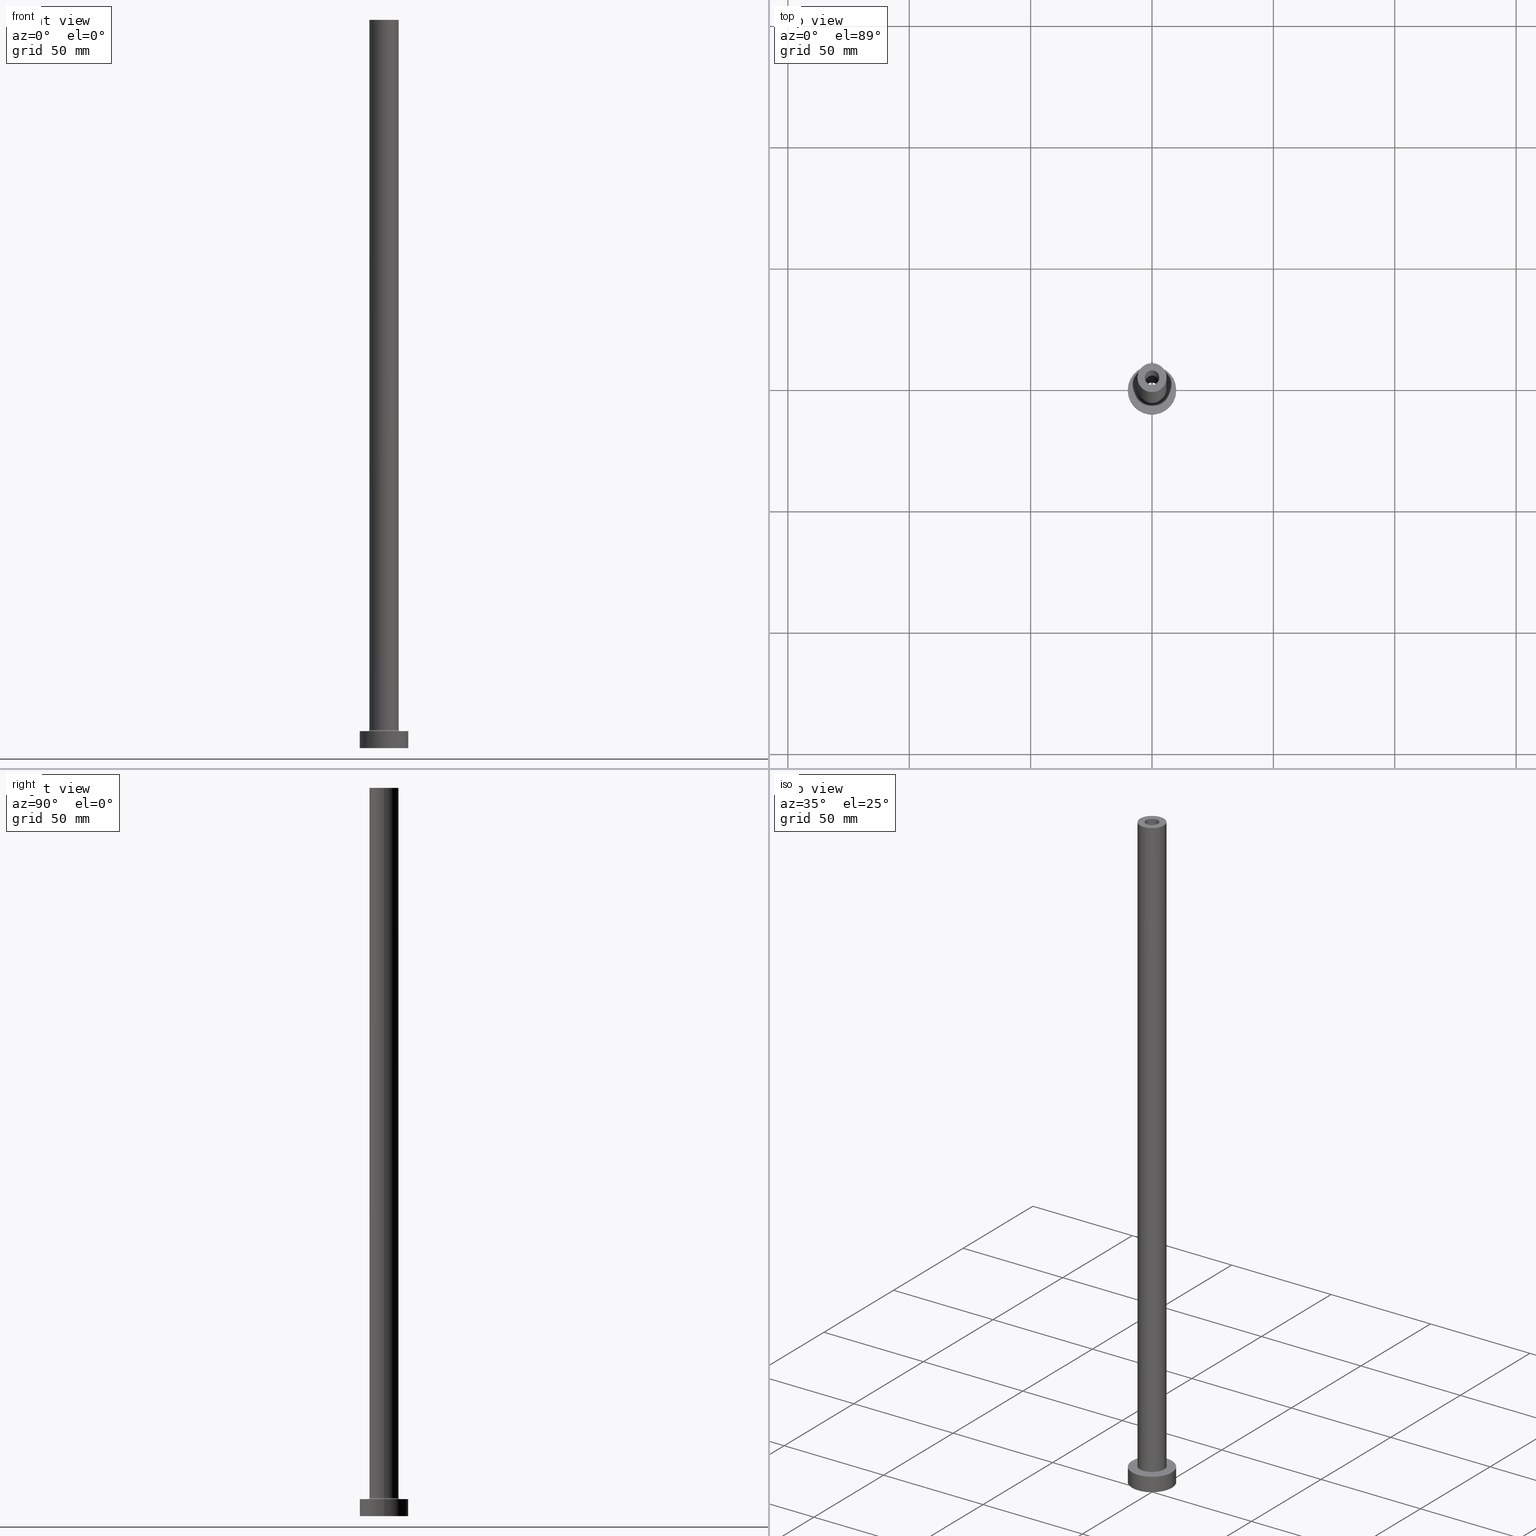
[diagram: canonical four-view strip — front | top / right | iso, engineering-drawing reading convention]
A machine part, canonical four-view strip (front | top / right | iso — engineering-drawing reading convention). The complete STEP part file that produces these views, byte-faithful:
ISO-10303-21;
HEADER;
FILE_DESCRIPTION (( 'STEP AP203' ),
    '1' );
FILE_NAME ('ec31.STEP',
    '2023-02-13T15:00:52',
    ( '' ),
    ( '' ),
    'SwSTEP 2.0',
    'SolidWorks 2019',
    '' );
FILE_SCHEMA (( 'CONFIG_CONTROL_DESIGN' ));
ENDSEC;

DATA;
#1 = DIRECTION ( 'NONE',  ( 0.000000000000000000, 0.000000000000000000, 1.000000000000000000 ) ) ;
#2 = DIRECTION ( 'NONE',  ( 0.000000000000000000, 0.000000000000000000, 1.000000000000000000 ) ) ;
#3 = APPLICATION_CONTEXT ( 'configuration controlled 3d designs of mechanical parts and assemblies' ) ;
#4 = DIRECTION ( 'NONE',  ( -1.000000000000000000, 0.000000000000000000, 0.000000000000000000 ) ) ;
#5 = ORIENTED_EDGE ( 'NONE', *, *, #112, .F. ) ;
#6 = CIRCLE ( 'NONE', #69, 3.000000000000000444 ) ;
#7 = EDGE_CURVE ( 'NONE', #16, #55, #129, .T. ) ;
#8 = CIRCLE ( 'NONE', #186, 6.500000000000000888 ) ;
#9 = LOCAL_TIME ( 16, 0, 52.00000000000000000, #297 ) ;
#10 = DIRECTION ( 'NONE',  ( -0.000000000000000000, -0.000000000000000000, -1.000000000000000000 ) ) ;
#11 = ORIENTED_EDGE ( 'NONE', *, *, #420, .F. ) ;
#12 = CALENDAR_DATE ( 2023, 13, 2 ) ;
#13 = ORIENTED_EDGE ( 'NONE', *, *, #420, .T. ) ;
#14 = ADVANCED_FACE ( 'NONE', ( #135 ), #17, .F. ) ;
#15 = APPROVAL_ROLE ( '' ) ;
#16 = VERTEX_POINT ( 'NONE', #162 ) ;
#17 = TOROIDAL_SURFACE ( 'NONE', #76, 6.500000000000000888, 0.5000000000000000000 ) ;
#18 = AXIS2_PLACEMENT_3D ( 'NONE', #414, #355, #109 ) ;
#19 = DATE_AND_TIME ( #12, #342 ) ;
#20 = ORIENTED_EDGE ( 'NONE', *, *, #401, .T. ) ;
#21 = APPROVAL_STATUS ( 'not_yet_approved' ) ;
#22 = ORIENTED_EDGE ( 'NONE', *, *, #412, .F. ) ;
#23 = APPROVAL_ROLE ( '' ) ;
#24 = DIRECTION ( 'NONE',  ( 0.000000000000000000, 0.000000000000000000, 1.000000000000000000 ) ) ;
#25 = FACE_BOUND ( 'NONE', #286, .T. ) ;
#26 = CC_DESIGN_APPROVAL ( #146, ( #214 ) ) ;
#27 = ORIENTED_EDGE ( 'NONE', *, *, #303, .T. ) ;
#28 = CC_DESIGN_PERSON_AND_ORGANIZATION_ASSIGNMENT ( #290, #332, ( #71 ) ) ;
#29 = ORIENTED_EDGE ( 'NONE', *, *, #283, .T. ) ;
#30 = CARTESIAN_POINT ( 'NONE',  ( 0.000000000000000000, 0.000000000000000000, 255.0000000000000000 ) ) ;
#31 = CARTESIAN_POINT ( 'NONE',  ( 0.000000000000000000, 0.000000000000000000, 300.0000000000000000 ) ) ;
#32 = TOROIDAL_SURFACE ( 'NONE', #408, 6.500000000000000888, 0.5000000000000000000 ) ;
#33 = APPROVAL_PERSON_ORGANIZATION ( #190, #146, #188 ) ;
#34 = DIRECTION ( 'NONE',  ( 0.000000000000000000, 0.000000000000000000, 1.000000000000000000 ) ) ;
#35 = LINE ( 'NONE', #219, #316 ) ;
#36 = DIRECTION ( 'NONE',  ( 1.000000000000000000, 0.000000000000000000, 0.000000000000000000 ) ) ;
#37 = DIRECTION ( 'NONE',  ( 1.000000000000000000, 0.000000000000000000, 0.000000000000000000 ) ) ;
#38 = EDGE_CURVE ( 'NONE', #124, #323, #57, .T. ) ;
#39 = DIRECTION ( 'NONE',  ( -0.000000000000000000, -0.000000000000000000, -1.000000000000000000 ) ) ;
#40 = CYLINDRICAL_SURFACE ( 'NONE', #99, 10.00000000000000000 ) ;
#41 = APPROVAL ( #327, 'NEUR�EN�' ) ;
#42 = CARTESIAN_POINT ( 'NONE',  ( 10.00000000000000000, 1.224646799147353256E-15, 0.000000000000000000 ) ) ;
#43 = CIRCLE ( 'NONE', #293, 6.000000000000000888 ) ;
#44 = CARTESIAN_POINT ( 'NONE',  ( -3.150000000000000355, 0.000000000000000000, 263.9095454429505594 ) ) ;
#45 = EDGE_CURVE ( 'NONE', #372, #333, #6, .T. ) ;
#46 = CC_DESIGN_PERSON_AND_ORGANIZATION_ASSIGNMENT ( #399, #437, ( #151 ) ) ;
#47 = LINE ( 'NONE', #275, #180 ) ;
#48 = DIRECTION ( 'NONE',  ( 1.000000000000000000, 0.000000000000000000, 0.000000000000000000 ) ) ;
#49 = DIRECTION ( 'NONE',  ( 0.000000000000000000, 0.000000000000000000, 1.000000000000000000 ) ) ;
#50 = VERTEX_POINT ( 'NONE', #300 ) ;
#51 = AXIS2_PLACEMENT_3D ( 'NONE', #115, #49, #415 ) ;
#52 = PERSON_AND_ORGANIZATION ( #447, #158 ) ;
#53 = VERTEX_POINT ( 'NONE', #128 ) ;
#54 = ADVANCED_FACE ( 'NONE', ( #377 ), #66, .F. ) ;
#55 = VERTEX_POINT ( 'NONE', #60 ) ;
#56 = EDGE_LOOP ( 'NONE', ( #13, #367 ) ) ;
#57 = CIRCLE ( 'NONE', #306, 3.000000000000000444 ) ;
#58 = AXIS2_PLACEMENT_3D ( 'NONE', #213, #252, #170 ) ;
#59 = CARTESIAN_POINT ( 'NONE',  ( 0.000000000000000000, 0.000000000000000000, 255.0000000000000000 ) ) ;
#60 = CARTESIAN_POINT ( 'NONE',  ( 3.150000000000000355, 3.857637417314163182E-16, 255.0000000000000000 ) ) ;
#61 = PRODUCT_RELATED_PRODUCT_CATEGORY ( 'detail', '', ( #199 ) ) ;
#62 = DIRECTION ( 'NONE',  ( -1.000000000000000000, 0.000000000000000000, 0.000000000000000000 ) ) ;
#63 = CIRCLE ( 'NONE', #217, 3.150000000000000355 ) ;
#64 = ORIENTED_EDGE ( 'NONE', *, *, #374, .F. ) ;
#65 = ADVANCED_FACE ( 'NONE', ( #25, #266 ), #198, .T. ) ;
#66 = CYLINDRICAL_SURFACE ( 'NONE', #157, 3.000000000000000444 ) ;
#67 = FACE_OUTER_BOUND ( 'NONE', #224, .T. ) ;
#68 = APPLICATION_PROTOCOL_DEFINITION ( 'international standard', 'config_control_design', 1994, #3 ) ;
#69 = AXIS2_PLACEMENT_3D ( 'NONE', #298, #231, #407 ) ;
#70 = DIRECTION ( 'NONE',  ( -0.000000000000000000, -0.000000000000000000, -1.000000000000000000 ) ) ;
#71 = PRODUCT_DEFINITION_FORMATION_WITH_SPECIFIED_SOURCE ( 'LIBOVOLN�', '', #199, .NOT_KNOWN. ) ;
#72 = DIRECTION ( 'NONE',  ( 0.000000000000000000, 0.000000000000000000, -1.000000000000000000 ) ) ;
#73 = FACE_BOUND ( 'NONE', #101, .T. ) ;
#74 = LINE ( 'NONE', #44, #356 ) ;
#75 = CARTESIAN_POINT ( 'NONE',  ( 0.000000000000000000, 0.000000000000000000, 300.0000000000000000 ) ) ;
#76 = AXIS2_PLACEMENT_3D ( 'NONE', #234, #96, #448 ) ;
#77 = DIRECTION ( 'NONE',  ( -1.000000000000000000, 0.000000000000000000, 0.000000000000000000 ) ) ;
#78 = AXIS2_PLACEMENT_3D ( 'NONE', #351, #421, #182 ) ;
#79 = ADVANCED_FACE ( 'NONE', ( #132 ), #265, .F. ) ;
#80 = DIRECTION ( 'NONE',  ( 0.000000000000000000, 0.000000000000000000, 1.000000000000000000 ) ) ;
#81 = FACE_BOUND ( 'NONE', #134, .T. ) ;
#82 = ORIENTED_EDGE ( 'NONE', *, *, #92, .F. ) ;
#83 = DATE_TIME_ROLE ( 'classification_date' ) ;
#84 = EDGE_LOOP ( 'NONE', ( #221, #253 ) ) ;
#85 = EDGE_CURVE ( 'NONE', #304, #261, #433, .T. ) ;
#86 = CIRCLE ( 'NONE', #18, 3.150000000000000355 ) ;
#87 = APPROVAL_PERSON_ORGANIZATION ( #434, #436, #23 ) ;
#88 = VERTEX_POINT ( 'NONE', #238 ) ;
#89 = ORIENTED_EDGE ( 'NONE', *, *, #411, .T. ) ;
#90 = ORIENTED_EDGE ( 'NONE', *, *, #334, .T. ) ;
#91 = CIRCLE ( 'NONE', #357, 10.00000000000000000 ) ;
#92 = EDGE_CURVE ( 'NONE', #55, #230, #273, .T. ) ;
#93 = PERSON_AND_ORGANIZATION ( #447, #158 ) ;
#94 = DIRECTION ( 'NONE',  ( 0.000000000000000000, 0.000000000000000000, -1.000000000000000000 ) ) ;
#95 = ORIENTED_EDGE ( 'NONE', *, *, #173, .F. ) ;
#96 = DIRECTION ( 'NONE',  ( 0.000000000000000000, 0.000000000000000000, 1.000000000000000000 ) ) ;
#97 = EDGE_CURVE ( 'NONE', #194, #88, #8, .T. ) ;
#98 = AXIS2_PLACEMENT_3D ( 'NONE', #172, #208, #350 ) ;
#99 = AXIS2_PLACEMENT_3D ( 'NONE', #417, #107, #243 ) ;
#100 = EDGE_LOOP ( 'NONE', ( #257, #89, #429, #202 ) ) ;
#101 = EDGE_LOOP ( 'NONE', ( #201, #328 ) ) ;
#102 = CARTESIAN_POINT ( 'NONE',  ( -10.00000000000000000, 0.000000000000000000, 0.000000000000000000 ) ) ;
#103 = CYLINDRICAL_SURFACE ( 'NONE', #270, 3.000000000000000444 ) ;
#104 = MECHANICAL_CONTEXT ( 'NONE', #3, 'mechanical' ) ;
#105 = DIRECTION ( 'NONE',  ( 1.000000000000000000, 0.000000000000000000, 0.000000000000000000 ) ) ;
#106 = CIRCLE ( 'NONE', #78, 6.500000000000000888 ) ;
#107 = DIRECTION ( 'NONE',  ( -0.000000000000000000, -0.000000000000000000, -1.000000000000000000 ) ) ;
#108 = CARTESIAN_POINT ( 'NONE',  ( 0.000000000000000000, 0.000000000000000000, 7.500000000000007105 ) ) ;
#109 = DIRECTION ( 'NONE',  ( 1.000000000000000000, 0.000000000000000000, 0.000000000000000000 ) ) ;
#110 = CARTESIAN_POINT ( 'NONE',  ( 6.500000000000000888, 0.000000000000000000, 7.500000000000007105 ) ) ;
#111 = ADVANCED_FACE ( 'NONE', ( #383 ), #32, .F. ) ;
#112 = EDGE_CURVE ( 'NONE', #121, #291, #205, .T. ) ;
#113 = DIRECTION ( 'NONE',  ( 0.000000000000000000, 0.000000000000000000, -1.000000000000000000 ) ) ;
#114 = CIRCLE ( 'NONE', #130, 6.000000000000000888 ) ;
#115 = CARTESIAN_POINT ( 'NONE',  ( 0.000000000000000000, 0.000000000000000000, 255.0000000000000000 ) ) ;
#116 = MANIFOLD_SOLID_BREP ( 'Odebrat vysunut�m4', #340 ) ;
#117 = ORIENTED_EDGE ( 'NONE', *, *, #92, .T. ) ;
#118 = DIRECTION ( 'NONE',  ( 0.000000000000000000, 0.000000000000000000, 1.000000000000000000 ) ) ;
#119 = ORIENTED_EDGE ( 'NONE', *, *, #268, .F. ) ;
#120 = DATE_AND_TIME ( #430, #248 ) ;
#121 = VERTEX_POINT ( 'NONE', #241 ) ;
#122 = ADVANCED_BREP_SHAPE_REPRESENTATION ( 'ec31', ( #116, #425 ), #294 ) ;
#123 = AXIS2_PLACEMENT_3D ( 'NONE', #317, #1, #453 ) ;
#124 = VERTEX_POINT ( 'NONE', #455 ) ;
#125 = COORDINATED_UNIVERSAL_TIME_OFFSET ( 1, 0, .AHEAD. ) ;
#126 = ORIENTED_EDGE ( 'NONE', *, *, #127, .T. ) ;
#127 = EDGE_CURVE ( 'NONE', #230, #50, #63, .T. ) ;
#128 = CARTESIAN_POINT ( 'NONE',  ( -10.00000000000000000, 0.000000000000000000, 7.000000000000000000 ) ) ;
#129 = CIRCLE ( 'NONE', #432, 3.150000000000000355 ) ;
#130 = AXIS2_PLACEMENT_3D ( 'NONE', #75, #215, #36 ) ;
#131 = COORDINATED_UNIVERSAL_TIME_OFFSET ( 1, 0, .AHEAD. ) ;
#132 = FACE_OUTER_BOUND ( 'NONE', #260, .T. ) ;
#133 = CC_DESIGN_PERSON_AND_ORGANIZATION_ASSIGNMENT ( #295, #397, ( #214 ) ) ;
#134 = EDGE_LOOP ( 'NONE', ( #164, #159 ) ) ;
#135 = FACE_OUTER_BOUND ( 'NONE', #222, .T. ) ;
#136 = CIRCLE ( 'NONE', #144, 0.5000000000000004441 ) ;
#137 = DIRECTION ( 'NONE',  ( 1.000000000000000000, 0.000000000000000000, 0.000000000000000000 ) ) ;
#138 = DIRECTION ( 'NONE',  ( 0.000000000000000000, 0.000000000000000000, 1.000000000000000000 ) ) ;
#139 = CARTESIAN_POINT ( 'NONE',  ( 0.000000000000000000, 0.000000000000000000, 0.000000000000000000 ) ) ;
#140 = CYLINDRICAL_SURFACE ( 'NONE', #461, 10.00000000000000000 ) ;
#141 = CARTESIAN_POINT ( 'NONE',  ( -6.000000000000000888, 0.000000000000000000, 7.500000000000007105 ) ) ;
#142 = DIRECTION ( 'NONE',  ( 0.000000000000000000, 0.000000000000000000, -1.000000000000000000 ) ) ;
#143 = FACE_OUTER_BOUND ( 'NONE', #305, .T. ) ;
#144 = AXIS2_PLACEMENT_3D ( 'NONE', #110, #181, #142 ) ;
#145 = DIRECTION ( 'NONE',  ( -0.000000000000000000, -0.000000000000000000, -1.000000000000000000 ) ) ;
#146 = APPROVAL ( #21, 'NEUR�EN�' ) ;
#147 = FACE_OUTER_BOUND ( 'NONE', #100, .T. ) ;
#148 = DIRECTION ( 'NONE',  ( 0.000000000000000000, 0.000000000000000000, -1.000000000000000000 ) ) ;
#149 = VERTEX_POINT ( 'NONE', #141 ) ;
#150 = AXIS2_PLACEMENT_3D ( 'NONE', #30, #322, #311 ) ;
#151 = SECURITY_CLASSIFICATION ( '', '', #264 ) ;
#152 = ORIENTED_EDGE ( 'NONE', *, *, #235, .T. ) ;
#153 = PERSON_AND_ORGANIZATION_ROLE ( 'creator' ) ;
#154 = VERTEX_POINT ( 'NONE', #102 ) ;
#155 = COORDINATED_UNIVERSAL_TIME_OFFSET ( 1, 0, .AHEAD. ) ;
#156 = EDGE_LOOP ( 'NONE', ( #64, #226 ) ) ;
#157 = AXIS2_PLACEMENT_3D ( 'NONE', #440, #94, #302 ) ;
#158 = ORGANIZATION ( 'NEUR�EN�', 'NEUR�EN�', '' ) ;
#159 = ORIENTED_EDGE ( 'NONE', *, *, #127, .F. ) ;
#160 = ADVANCED_FACE ( 'NONE', ( #73, #379 ), #452, .T. ) ;
#161 = APPROVAL_DATE_TIME ( #403, #146 ) ;
#162 = CARTESIAN_POINT ( 'NONE',  ( -3.150000000000000355, 0.000000000000000000, 255.0000000000000000 ) ) ;
#163 = DATE_AND_TIME ( #299, #9 ) ;
#164 = ORIENTED_EDGE ( 'NONE', *, *, #242, .F. ) ;
#165 = DESIGN_CONTEXT ( 'detailed design', #271, 'design' ) ;
#166 = ADVANCED_FACE ( 'NONE', ( #67 ), #347, .T. ) ;
#167 = ORIENTED_EDGE ( 'NONE', *, *, #173, .T. ) ;
#168 = ORIENTED_EDGE ( 'NONE', *, *, #411, .F. ) ;
#169 = ORIENTED_EDGE ( 'NONE', *, *, #387, .T. ) ;
#170 = DIRECTION ( 'NONE',  ( 1.000000000000000000, 0.000000000000000000, 0.000000000000000000 ) ) ;
#171 = CIRCLE ( 'NONE', #247, 10.00000000000000000 ) ;
#172 = CARTESIAN_POINT ( 'NONE',  ( 0.000000000000000000, 0.000000000000000000, 300.0000000000000000 ) ) ;
#173 = EDGE_CURVE ( 'NONE', #333, #323, #35, .T. ) ;
#174 = DIRECTION ( 'NONE',  ( -0.000000000000000000, -0.000000000000000000, -1.000000000000000000 ) ) ;
#175 = DIRECTION ( 'NONE',  ( 1.000000000000000000, 0.000000000000000000, 0.000000000000000000 ) ) ;
#176 = CYLINDRICAL_SURFACE ( 'NONE', #381, 6.000000000000000888 ) ;
#177 = CARTESIAN_POINT ( 'NONE',  ( 0.000000000000000000, 0.000000000000000000, 0.000000000000000000 ) ) ;
#178 = FACE_OUTER_BOUND ( 'NONE', #236, .T. ) ;
#179 = EDGE_CURVE ( 'NONE', #291, #154, #363, .T. ) ;
#180 = VECTOR ( 'NONE', #10, 1000.000000000000000 ) ;
#181 = DIRECTION ( 'NONE',  ( 0.000000000000000000, -1.000000000000000000, 0.000000000000000000 ) ) ;
#182 = DIRECTION ( 'NONE',  ( 1.000000000000000000, 0.000000000000000000, 0.000000000000000000 ) ) ;
#183 = ORIENTED_EDGE ( 'NONE', *, *, #458, .T. ) ;
#184 = CARTESIAN_POINT ( 'NONE',  ( 0.000000000000000000, 0.000000000000000000, 7.000000000000000000 ) ) ;
#185 = ORIENTED_EDGE ( 'NONE', *, *, #283, .F. ) ;
#186 = AXIS2_PLACEMENT_3D ( 'NONE', #309, #70, #175 ) ;
#187 = LOCAL_TIME ( 16, 0, 52.00000000000000000, #131 ) ;
#188 = APPROVAL_ROLE ( '' ) ;
#189 = ORIENTED_EDGE ( 'NONE', *, *, #85, .T. ) ;
#190 = PERSON_AND_ORGANIZATION ( #447, #158 ) ;
#191 = ORIENTED_EDGE ( 'NONE', *, *, #242, .T. ) ;
#192 = CC_DESIGN_PERSON_AND_ORGANIZATION_ASSIGNMENT ( #52, #153, ( #71 ) ) ;
#193 = PERSON_AND_ORGANIZATION_ROLE ( 'design_owner' ) ;
#194 = VERTEX_POINT ( 'NONE', #282 ) ;
#195 = AXIS2_PLACEMENT_3D ( 'NONE', #31, #211, #459 ) ;
#196 = SHAPE_DEFINITION_REPRESENTATION ( #338, #122 ) ;
#197 = ORIENTED_EDGE ( 'NONE', *, *, #179, .T. ) ;
#198 = PLANE ( 'NONE',  #228 ) ;
#199 = PRODUCT ( 'ec31', 'ec31', '', ( #104 ) ) ;
#200 = CARTESIAN_POINT ( 'NONE',  ( 0.000000000000000000, 0.000000000000000000, 300.0000000000000000 ) ) ;
#201 = ORIENTED_EDGE ( 'NONE', *, *, #45, .F. ) ;
#202 = ORIENTED_EDGE ( 'NONE', *, *, #401, .F. ) ;
#203 = CARTESIAN_POINT ( 'NONE',  ( -6.000000000000000888, 0.000000000000000000, 300.0000000000000000 ) ) ;
#204 = ADVANCED_FACE ( 'NONE', ( #147 ), #176, .T. ) ;
#205 = LINE ( 'NONE', #378, #329 ) ;
#206 = PLANE ( 'NONE',  #307 ) ;
#207 = CIRCLE ( 'NONE', #123, 10.00000000000000000 ) ;
#208 = DIRECTION ( 'NONE',  ( -0.000000000000000000, -0.000000000000000000, -1.000000000000000000 ) ) ;
#209 = DIRECTION ( 'NONE',  ( 1.224646799147353207E-16, 1.000000000000000000, -0.000000000000000000 ) ) ;
#210 = DIRECTION ( 'NONE',  ( -1.000000000000000000, 0.000000000000000000, 0.000000000000000000 ) ) ;
#211 = DIRECTION ( 'NONE',  ( 0.000000000000000000, 0.000000000000000000, 1.000000000000000000 ) ) ;
#212 = CARTESIAN_POINT ( 'NONE',  ( 3.000000000000000444, 3.673940397442059868E-16, 255.0000000000000000 ) ) ;
#213 = CARTESIAN_POINT ( 'NONE',  ( 0.000000000000000000, 0.000000000000000000, 255.0000000000000000 ) ) ;
#214 = PRODUCT_DEFINITION ( 'NEZN�M�', '', #71, #165 ) ;
#215 = DIRECTION ( 'NONE',  ( 0.000000000000000000, 0.000000000000000000, 1.000000000000000000 ) ) ;
#216 = CC_DESIGN_DATE_AND_TIME_ASSIGNMENT ( #120, #83, ( #151 ) ) ;
#217 = AXIS2_PLACEMENT_3D ( 'NONE', #177, #314, #353 ) ;
#218 = CC_DESIGN_SECURITY_CLASSIFICATION ( #151, ( #71 ) ) ;
#219 = CARTESIAN_POINT ( 'NONE',  ( 3.000000000000000444, 3.673940397442059868E-16, 300.0000000000000000 ) ) ;
#220 = DIRECTION ( 'NONE',  ( -1.000000000000000000, 1.224646799147351482E-16, 0.000000000000000000 ) ) ;
#221 = ORIENTED_EDGE ( 'NONE', *, *, #7, .F. ) ;
#222 = EDGE_LOOP ( 'NONE', ( #344, #227, #395, #393 ) ) ;
#223 = AXIS2_PLACEMENT_3D ( 'NONE', #405, #373, #62 ) ;
#224 = EDGE_LOOP ( 'NONE', ( #168, #185, #20, #90 ) ) ;
#225 = EDGE_CURVE ( 'NONE', #372, #124, #423, .T. ) ;
#226 = ORIENTED_EDGE ( 'NONE', *, *, #179, .F. ) ;
#227 = ORIENTED_EDGE ( 'NONE', *, *, #268, .T. ) ;
#228 = AXIS2_PLACEMENT_3D ( 'NONE', #337, #24, #443 ) ;
#229 = APPROVAL_DATE_TIME ( #19, #41 ) ;
#230 = VERTEX_POINT ( 'NONE', #274 ) ;
#231 = DIRECTION ( 'NONE',  ( 0.000000000000000000, 0.000000000000000000, 1.000000000000000000 ) ) ;
#232 = ORIENTED_EDGE ( 'NONE', *, *, #374, .T. ) ;
#233 = CC_DESIGN_APPROVAL ( #436, ( #71 ) ) ;
#234 = CARTESIAN_POINT ( 'NONE',  ( 0.000000000000000000, 0.000000000000000000, 7.500000000000007105 ) ) ;
#235 = EDGE_CURVE ( 'NONE', #53, #154, #354, .T. ) ;
#236 = EDGE_LOOP ( 'NONE', ( #431, #117, #126, #345 ) ) ;
#237 = DIRECTION ( 'NONE',  ( 0.000000000000000000, 0.000000000000000000, 1.000000000000000000 ) ) ;
#238 = CARTESIAN_POINT ( 'NONE',  ( 6.500000000000000888, 0.000000000000000000, 7.000000000000002665 ) ) ;
#239 = CARTESIAN_POINT ( 'NONE',  ( -6.500000000000000888, 7.960204194457796463E-16, 7.500000000000007105 ) ) ;
#240 = CIRCLE ( 'NONE', #341, 0.5000000000000004441 ) ;
#241 = CARTESIAN_POINT ( 'NONE',  ( 10.00000000000000000, 1.224646799147353256E-15, 7.000000000000000000 ) ) ;
#242 = EDGE_CURVE ( 'NONE', #50, #230, #86, .T. ) ;
#243 = DIRECTION ( 'NONE',  ( -1.000000000000000000, 0.000000000000000000, 0.000000000000000000 ) ) ;
#244 = CARTESIAN_POINT ( 'NONE',  ( 0.000000000000000000, 0.000000000000000000, 0.000000000000000000 ) ) ;
#245 = CARTESIAN_POINT ( 'NONE',  ( -3.000000000000000444, 0.000000000000000000, 300.0000000000000000 ) ) ;
#246 = CARTESIAN_POINT ( 'NONE',  ( 3.000000000000000444, 3.673940397442059868E-16, 300.0000000000000000 ) ) ;
#247 = AXIS2_PLACEMENT_3D ( 'NONE', #244, #118, #308 ) ;
#248 = LOCAL_TIME ( 16, 0, 52.00000000000000000, #256 ) ;
#249 = CARTESIAN_POINT ( 'NONE',  ( 0.000000000000000000, 0.000000000000000000, 300.0000000000000000 ) ) ;
#250 = ORIENTED_EDGE ( 'NONE', *, *, #38, .F. ) ;
#251 = EDGE_CURVE ( 'NONE', #16, #50, #74, .T. ) ;
#252 = DIRECTION ( 'NONE',  ( 0.000000000000000000, 0.000000000000000000, 1.000000000000000000 ) ) ;
#253 = ORIENTED_EDGE ( 'NONE', *, *, #458, .F. ) ;
#254 = PLANE ( 'NONE',  #51 ) ;
#255 = ORIENTED_EDGE ( 'NONE', *, *, #225, .F. ) ;
#256 = COORDINATED_UNIVERSAL_TIME_OFFSET ( 1, 0, .AHEAD. ) ;
#257 = ORIENTED_EDGE ( 'NONE', *, *, #85, .F. ) ;
#258 = CIRCLE ( 'NONE', #58, 3.000000000000000444 ) ;
#259 = ADVANCED_FACE ( 'NONE', ( #359 ), #103, .F. ) ;
#260 = EDGE_LOOP ( 'NONE', ( #82, #183, #368, #191 ) ) ;
#261 = VERTEX_POINT ( 'NONE', #312 ) ;
#262 = VERTEX_POINT ( 'NONE', #386 ) ;
#263 = AXIS2_PLACEMENT_3D ( 'NONE', #200, #339, #445 ) ;
#264 = SECURITY_CLASSIFICATION_LEVEL ( 'unclassified' ) ;
#265 = CYLINDRICAL_SURFACE ( 'NONE', #223, 3.150000000000000355 ) ;
#266 = FACE_OUTER_BOUND ( 'NONE', #56, .T. ) ;
#267 = CARTESIAN_POINT ( 'NONE',  ( 0.000000000000000000, 0.000000000000000000, 255.0000000000000000 ) ) ;
#268 = EDGE_CURVE ( 'NONE', #149, #194, #240, .T. ) ;
#269 = EDGE_CURVE ( 'NONE', #88, #194, #106, .T. ) ;
#270 = AXIS2_PLACEMENT_3D ( 'NONE', #249, #391, #384 ) ;
#271 = APPLICATION_CONTEXT ( 'configuration controlled 3d designs of mechanical parts and assemblies' ) ;
#272 = DIRECTION ( 'NONE',  ( 0.000000000000000000, 0.000000000000000000, 1.000000000000000000 ) ) ;
#273 = LINE ( 'NONE', #413, #424 ) ;
#274 = CARTESIAN_POINT ( 'NONE',  ( 3.150000000000000355, 3.857637417314163182E-16, 0.000000000000000000 ) ) ;
#275 = CARTESIAN_POINT ( 'NONE',  ( 6.000000000000000888, 7.347880794884120722E-16, 300.0000000000000000 ) ) ;
#276 = CARTESIAN_POINT ( 'NONE',  ( 0.000000000000000000, 0.000000000000000000, 7.500000000000007105 ) ) ;
#277 = FACE_OUTER_BOUND ( 'NONE', #427, .T. ) ;
#278 = CARTESIAN_POINT ( 'NONE',  ( -3.000000000000000444, 0.000000000000000000, 300.0000000000000000 ) ) ;
#279 = CC_DESIGN_APPROVAL ( #41, ( #151 ) ) ;
#280 = CARTESIAN_POINT ( 'NONE',  ( 0.000000000000000000, 0.000000000000000000, 300.0000000000000000 ) ) ;
#281 = CARTESIAN_POINT ( 'NONE',  ( -10.00000000000000000, 0.000000000000000000, 7.000000000000000000 ) ) ;
#282 = CARTESIAN_POINT ( 'NONE',  ( -6.500000000000000888, 7.960204194457796463E-16, 7.000000000000002665 ) ) ;
#283 = EDGE_CURVE ( 'NONE', #261, #304, #114, .T. ) ;
#284 = AXIS2_PLACEMENT_3D ( 'NONE', #460, #287, #210 ) ;
#285 = CARTESIAN_POINT ( 'NONE',  ( 0.000000000000000000, 0.000000000000000000, 0.000000000000000000 ) ) ;
#286 = EDGE_LOOP ( 'NONE', ( #438, #292 ) ) ;
#287 = DIRECTION ( 'NONE',  ( 0.000000000000000000, 0.000000000000000000, -1.000000000000000000 ) ) ;
#288 = EDGE_LOOP ( 'NONE', ( #119, #22, #296, #365 ) ) ;
#289 = CC_DESIGN_PERSON_AND_ORGANIZATION_ASSIGNMENT ( #442, #193, ( #199 ) ) ;
#290 = PERSON_AND_ORGANIZATION ( #447, #158 ) ;
#291 = VERTEX_POINT ( 'NONE', #42 ) ;
#292 = ORIENTED_EDGE ( 'NONE', *, *, #97, .T. ) ;
#293 = AXIS2_PLACEMENT_3D ( 'NONE', #108, #361, #392 ) ;
#294 =( GEOMETRIC_REPRESENTATION_CONTEXT ( 3 ) GLOBAL_UNCERTAINTY_ASSIGNED_CONTEXT ( ( #444 ) ) GLOBAL_UNIT_ASSIGNED_CONTEXT ( ( #451, #457, #349 ) ) REPRESENTATION_CONTEXT ( 'NONE', 'WORKASPACE' ) );
#295 = PERSON_AND_ORGANIZATION ( #447, #158 ) ;
#296 = ORIENTED_EDGE ( 'NONE', *, *, #318, .T. ) ;
#297 = COORDINATED_UNIVERSAL_TIME_OFFSET ( 1, 0, .AHEAD. ) ;
#298 = CARTESIAN_POINT ( 'NONE',  ( 0.000000000000000000, 0.000000000000000000, 300.0000000000000000 ) ) ;
#299 = CALENDAR_DATE ( 2023, 13, 2 ) ;
#300 = CARTESIAN_POINT ( 'NONE',  ( -3.150000000000000355, 0.000000000000000000, 0.000000000000000000 ) ) ;
#301 = CIRCLE ( 'NONE', #418, 3.000000000000000444 ) ;
#302 = DIRECTION ( 'NONE',  ( -1.000000000000000000, 0.000000000000000000, 0.000000000000000000 ) ) ;
#303 = EDGE_CURVE ( 'NONE', #333, #372, #301, .T. ) ;
#304 = VERTEX_POINT ( 'NONE', #360 ) ;
#305 = EDGE_LOOP ( 'NONE', ( #5, #11, #152, #232 ) ) ;
#306 = AXIS2_PLACEMENT_3D ( 'NONE', #267, #272, #410 ) ;
#307 = AXIS2_PLACEMENT_3D ( 'NONE', #346, #237, #385 ) ;
#308 = DIRECTION ( 'NONE',  ( 1.000000000000000000, 0.000000000000000000, 0.000000000000000000 ) ) ;
#309 = CARTESIAN_POINT ( 'NONE',  ( 0.000000000000000000, 0.000000000000000000, 7.000000000000000000 ) ) ;
#310 = DIRECTION ( 'NONE',  ( 1.000000000000000000, 0.000000000000000000, 0.000000000000000000 ) ) ;
#311 = DIRECTION ( 'NONE',  ( 1.000000000000000000, 0.000000000000000000, 0.000000000000000000 ) ) ;
#312 = CARTESIAN_POINT ( 'NONE',  ( -6.000000000000000888, 0.000000000000000000, 300.0000000000000000 ) ) ;
#313 = LINE ( 'NONE', #203, #376 ) ;
#314 = DIRECTION ( 'NONE',  ( -0.000000000000000000, -0.000000000000000000, -1.000000000000000000 ) ) ;
#315 = CYLINDRICAL_SURFACE ( 'NONE', #284, 3.150000000000000355 ) ;
#316 = VECTOR ( 'NONE', #113, 1000.000000000000000 ) ;
#317 = CARTESIAN_POINT ( 'NONE',  ( 0.000000000000000000, 0.000000000000000000, 7.000000000000000000 ) ) ;
#318 = EDGE_CURVE ( 'NONE', #262, #88, #136, .T. ) ;
#319 = CARTESIAN_POINT ( 'NONE',  ( 0.000000000000000000, 0.000000000000000000, 7.500000000000007105 ) ) ;
#320 = EDGE_LOOP ( 'NONE', ( #370, #169 ) ) ;
#321 = AXIS2_PLACEMENT_3D ( 'NONE', #139, #80, #388 ) ;
#322 = DIRECTION ( 'NONE',  ( 0.000000000000000000, 0.000000000000000000, 1.000000000000000000 ) ) ;
#323 = VERTEX_POINT ( 'NONE', #212 ) ;
#324 = EDGE_CURVE ( 'NONE', #121, #53, #207, .T. ) ;
#325 = APPLICATION_PROTOCOL_DEFINITION ( 'international standard', 'config_control_design', 1994, #271 ) ;
#326 = ORIENTED_EDGE ( 'NONE', *, *, #387, .F. ) ;
#327 = APPROVAL_STATUS ( 'not_yet_approved' ) ;
#328 = ORIENTED_EDGE ( 'NONE', *, *, #303, .F. ) ;
#329 = VECTOR ( 'NONE', #39, 1000.000000000000000 ) ;
#330 = CALENDAR_DATE ( 2023, 13, 2 ) ;
#331 = ORIENTED_EDGE ( 'NONE', *, *, #235, .F. ) ;
#332 = PERSON_AND_ORGANIZATION_ROLE ( 'design_supplier' ) ;
#333 = VERTEX_POINT ( 'NONE', #246 ) ;
#334 = EDGE_CURVE ( 'NONE', #149, #262, #389, .T. ) ;
#335 = ADVANCED_FACE ( 'NONE', ( #277 ), #40, .T. ) ;
#336 = DATE_AND_TIME ( #439, #187 ) ;
#337 = CARTESIAN_POINT ( 'NONE',  ( 0.000000000000000000, 0.000000000000000000, 7.000000000000000000 ) ) ;
#338 = PRODUCT_DEFINITION_SHAPE ( 'NONE', 'NONE',  #214 ) ;
#339 = DIRECTION ( 'NONE',  ( 0.000000000000000000, 0.000000000000000000, 1.000000000000000000 ) ) ;
#340 = CLOSED_SHELL ( 'NONE', ( #259, #343, #14, #204, #335, #358, #65, #450, #166, #160, #111, #79, #404, #54 ) ) ;
#341 = AXIS2_PLACEMENT_3D ( 'NONE', #239, #209, #220 ) ;
#342 = LOCAL_TIME ( 16, 0, 52.00000000000000000, #155 ) ;
#343 = ADVANCED_FACE ( 'NONE', ( #178 ), #315, .F. ) ;
#344 = ORIENTED_EDGE ( 'NONE', *, *, #334, .F. ) ;
#345 = ORIENTED_EDGE ( 'NONE', *, *, #251, .F. ) ;
#346 = CARTESIAN_POINT ( 'NONE',  ( 0.000000000000000000, 0.000000000000000000, 0.000000000000000000 ) ) ;
#347 = CYLINDRICAL_SURFACE ( 'NONE', #98, 6.000000000000000888 ) ;
#348 = CIRCLE ( 'NONE', #150, 3.150000000000000355 ) ;
#349 =( NAMED_UNIT ( * ) SI_UNIT ( $, .STERADIAN. ) SOLID_ANGLE_UNIT ( ) );
#350 = DIRECTION ( 'NONE',  ( -1.000000000000000000, 0.000000000000000000, 0.000000000000000000 ) ) ;
#351 = CARTESIAN_POINT ( 'NONE',  ( 0.000000000000000000, 0.000000000000000000, 7.000000000000000000 ) ) ;
#352 = FACE_OUTER_BOUND ( 'NONE', #84, .T. ) ;
#353 = DIRECTION ( 'NONE',  ( 1.000000000000000000, 0.000000000000000000, 0.000000000000000000 ) ) ;
#354 = LINE ( 'NONE', #281, #449 ) ;
#355 = DIRECTION ( 'NONE',  ( -0.000000000000000000, -0.000000000000000000, -1.000000000000000000 ) ) ;
#356 = VECTOR ( 'NONE', #72, 1000.000000000000000 ) ;
#357 = AXIS2_PLACEMENT_3D ( 'NONE', #184, #394, #37 ) ;
#358 = ADVANCED_FACE ( 'NONE', ( #143 ), #140, .T. ) ;
#359 = FACE_OUTER_BOUND ( 'NONE', #398, .T. ) ;
#360 = CARTESIAN_POINT ( 'NONE',  ( 6.000000000000000888, 7.347880794884120722E-16, 300.0000000000000000 ) ) ;
#361 = DIRECTION ( 'NONE',  ( 0.000000000000000000, 0.000000000000000000, 1.000000000000000000 ) ) ;
#362 = EDGE_LOOP ( 'NONE', ( #95, #27, #375, #326 ) ) ;
#363 = CIRCLE ( 'NONE', #321, 10.00000000000000000 ) ;
#364 = DATE_TIME_ROLE ( 'creation_date' ) ;
#365 = ORIENTED_EDGE ( 'NONE', *, *, #97, .F. ) ;
#366 = APPROVAL_STATUS ( 'not_yet_approved' ) ;
#367 = ORIENTED_EDGE ( 'NONE', *, *, #324, .T. ) ;
#368 = ORIENTED_EDGE ( 'NONE', *, *, #251, .T. ) ;
#369 = CC_DESIGN_DATE_AND_TIME_ASSIGNMENT ( #163, #364, ( #214 ) ) ;
#370 = ORIENTED_EDGE ( 'NONE', *, *, #38, .T. ) ;
#371 = APPROVAL_DATE_TIME ( #336, #436 ) ;
#372 = VERTEX_POINT ( 'NONE', #278 ) ;
#373 = DIRECTION ( 'NONE',  ( 0.000000000000000000, 0.000000000000000000, -1.000000000000000000 ) ) ;
#374 = EDGE_CURVE ( 'NONE', #154, #291, #171, .T. ) ;
#375 = ORIENTED_EDGE ( 'NONE', *, *, #225, .T. ) ;
#376 = VECTOR ( 'NONE', #174, 1000.000000000000000 ) ;
#377 = FACE_OUTER_BOUND ( 'NONE', #362, .T. ) ;
#378 = CARTESIAN_POINT ( 'NONE',  ( 10.00000000000000000, 1.224646799147353256E-15, 7.000000000000000000 ) ) ;
#379 = FACE_OUTER_BOUND ( 'NONE', #406, .T. ) ;
#380 = DIRECTION ( 'NONE',  ( -0.000000000000000000, -0.000000000000000000, -1.000000000000000000 ) ) ;
#381 = AXIS2_PLACEMENT_3D ( 'NONE', #422, #145, #77 ) ;
#382 = DIRECTION ( 'NONE',  ( -0.000000000000000000, -0.000000000000000000, -1.000000000000000000 ) ) ;
#383 = FACE_OUTER_BOUND ( 'NONE', #288, .T. ) ;
#384 = DIRECTION ( 'NONE',  ( -1.000000000000000000, 0.000000000000000000, 0.000000000000000000 ) ) ;
#385 = DIRECTION ( 'NONE',  ( 1.000000000000000000, 0.000000000000000000, -0.000000000000000000 ) ) ;
#386 = CARTESIAN_POINT ( 'NONE',  ( 6.000000000000000888, 7.347880794884120722E-16, 7.500000000000007105 ) ) ;
#387 = EDGE_CURVE ( 'NONE', #323, #124, #258, .T. ) ;
#388 = DIRECTION ( 'NONE',  ( 1.000000000000000000, 0.000000000000000000, 0.000000000000000000 ) ) ;
#389 = CIRCLE ( 'NONE', #396, 6.000000000000000888 ) ;
#390 = APPROVAL_PERSON_ORGANIZATION ( #93, #41, #15 ) ;
#391 = DIRECTION ( 'NONE',  ( 0.000000000000000000, 0.000000000000000000, -1.000000000000000000 ) ) ;
#392 = DIRECTION ( 'NONE',  ( 1.000000000000000000, 0.000000000000000000, 0.000000000000000000 ) ) ;
#393 = ORIENTED_EDGE ( 'NONE', *, *, #318, .F. ) ;
#394 = DIRECTION ( 'NONE',  ( 0.000000000000000000, 0.000000000000000000, 1.000000000000000000 ) ) ;
#395 = ORIENTED_EDGE ( 'NONE', *, *, #269, .F. ) ;
#396 = AXIS2_PLACEMENT_3D ( 'NONE', #319, #2, #48 ) ;
#397 = PERSON_AND_ORGANIZATION_ROLE ( 'creator' ) ;
#398 = EDGE_LOOP ( 'NONE', ( #400, #167, #250, #255 ) ) ;
#399 = PERSON_AND_ORGANIZATION ( #447, #158 ) ;
#400 = ORIENTED_EDGE ( 'NONE', *, *, #45, .T. ) ;
#401 = EDGE_CURVE ( 'NONE', #261, #149, #313, .T. ) ;
#402 = ORIENTED_EDGE ( 'NONE', *, *, #112, .T. ) ;
#403 = DATE_AND_TIME ( #330, #409 ) ;
#404 = ADVANCED_FACE ( 'NONE', ( #419, #352 ), #254, .F. ) ;
#405 = CARTESIAN_POINT ( 'NONE',  ( 0.000000000000000000, 0.000000000000000000, 263.9095454429505594 ) ) ;
#406 = EDGE_LOOP ( 'NONE', ( #29, #189 ) ) ;
#407 = DIRECTION ( 'NONE',  ( 1.000000000000000000, 0.000000000000000000, 0.000000000000000000 ) ) ;
#408 = AXIS2_PLACEMENT_3D ( 'NONE', #276, #138, #105 ) ;
#409 = LOCAL_TIME ( 16, 0, 52.00000000000000000, #125 ) ;
#410 = DIRECTION ( 'NONE',  ( 1.000000000000000000, 0.000000000000000000, 0.000000000000000000 ) ) ;
#411 = EDGE_CURVE ( 'NONE', #304, #262, #47, .T. ) ;
#412 = EDGE_CURVE ( 'NONE', #262, #149, #43, .T. ) ;
#413 = CARTESIAN_POINT ( 'NONE',  ( 3.150000000000000355, 3.857637417314163182E-16, 263.9095454429505594 ) ) ;
#414 = CARTESIAN_POINT ( 'NONE',  ( 0.000000000000000000, 0.000000000000000000, 0.000000000000000000 ) ) ;
#415 = DIRECTION ( 'NONE',  ( 1.000000000000000000, 0.000000000000000000, -0.000000000000000000 ) ) ;
#416 = DIRECTION ( 'NONE',  ( 0.000000000000000000, 0.000000000000000000, -1.000000000000000000 ) ) ;
#417 = CARTESIAN_POINT ( 'NONE',  ( 0.000000000000000000, 0.000000000000000000, 7.000000000000000000 ) ) ;
#418 = AXIS2_PLACEMENT_3D ( 'NONE', #280, #456, #310 ) ;
#419 = FACE_BOUND ( 'NONE', #320, .T. ) ;
#420 = EDGE_CURVE ( 'NONE', #53, #121, #91, .T. ) ;
#421 = DIRECTION ( 'NONE',  ( -0.000000000000000000, -0.000000000000000000, -1.000000000000000000 ) ) ;
#422 = CARTESIAN_POINT ( 'NONE',  ( 0.000000000000000000, 0.000000000000000000, 300.0000000000000000 ) ) ;
#423 = LINE ( 'NONE', #245, #441 ) ;
#424 = VECTOR ( 'NONE', #416, 1000.000000000000000 ) ;
#425 = AXIS2_PLACEMENT_3D ( 'NONE', #285, #34, #426 ) ;
#426 = DIRECTION ( 'NONE',  ( 1.000000000000000000, 0.000000000000000000, 0.000000000000000000 ) ) ;
#427 = EDGE_LOOP ( 'NONE', ( #435, #402, #197, #331 ) ) ;
#428 = CARTESIAN_POINT ( 'NONE',  ( 0.000000000000000000, 0.000000000000000000, 7.000000000000000000 ) ) ;
#429 = ORIENTED_EDGE ( 'NONE', *, *, #412, .T. ) ;
#430 = CALENDAR_DATE ( 2023, 13, 2 ) ;
#431 = ORIENTED_EDGE ( 'NONE', *, *, #7, .T. ) ;
#432 = AXIS2_PLACEMENT_3D ( 'NONE', #59, #446, #137 ) ;
#433 = CIRCLE ( 'NONE', #263, 6.000000000000000888 ) ;
#434 = PERSON_AND_ORGANIZATION ( #447, #158 ) ;
#435 = ORIENTED_EDGE ( 'NONE', *, *, #324, .F. ) ;
#436 = APPROVAL ( #366, 'NEUR�EN�' ) ;
#437 = PERSON_AND_ORGANIZATION_ROLE ( 'classification_officer' ) ;
#438 = ORIENTED_EDGE ( 'NONE', *, *, #269, .T. ) ;
#439 = CALENDAR_DATE ( 2023, 13, 2 ) ;
#440 = CARTESIAN_POINT ( 'NONE',  ( 0.000000000000000000, 0.000000000000000000, 300.0000000000000000 ) ) ;
#441 = VECTOR ( 'NONE', #148, 1000.000000000000000 ) ;
#442 = PERSON_AND_ORGANIZATION ( #447, #158 ) ;
#443 = DIRECTION ( 'NONE',  ( 1.000000000000000000, 0.000000000000000000, -0.000000000000000000 ) ) ;
#444 = UNCERTAINTY_MEASURE_WITH_UNIT (LENGTH_MEASURE( 1.000000000000000082E-05 ), #451, 'distance_accuracy_value', 'NONE');
#445 = DIRECTION ( 'NONE',  ( 1.000000000000000000, 0.000000000000000000, 0.000000000000000000 ) ) ;
#446 = DIRECTION ( 'NONE',  ( 0.000000000000000000, 0.000000000000000000, 1.000000000000000000 ) ) ;
#447 = PERSON ( 'NEUR�EN�', 'NEUR�EN�', 'NEUR�EN�', ('NEUR�EN�'), ('NEUR�EN�'), ('NEUR�EN�') ) ;
#448 = DIRECTION ( 'NONE',  ( 1.000000000000000000, 0.000000000000000000, 0.000000000000000000 ) ) ;
#449 = VECTOR ( 'NONE', #380, 1000.000000000000000 ) ;
#450 = ADVANCED_FACE ( 'NONE', ( #81, #454 ), #206, .F. ) ;
#451 =( LENGTH_UNIT ( ) NAMED_UNIT ( * ) SI_UNIT ( .MILLI., .METRE. ) );
#452 = PLANE ( 'NONE',  #195 ) ;
#453 = DIRECTION ( 'NONE',  ( 1.000000000000000000, 0.000000000000000000, 0.000000000000000000 ) ) ;
#454 = FACE_OUTER_BOUND ( 'NONE', #156, .T. ) ;
#455 = CARTESIAN_POINT ( 'NONE',  ( -3.000000000000000444, 0.000000000000000000, 255.0000000000000000 ) ) ;
#456 = DIRECTION ( 'NONE',  ( 0.000000000000000000, 0.000000000000000000, 1.000000000000000000 ) ) ;
#457 =( NAMED_UNIT ( * ) PLANE_ANGLE_UNIT ( ) SI_UNIT ( $, .RADIAN. ) );
#458 = EDGE_CURVE ( 'NONE', #55, #16, #348, .T. ) ;
#459 = DIRECTION ( 'NONE',  ( 1.000000000000000000, 0.000000000000000000, -0.000000000000000000 ) ) ;
#460 = CARTESIAN_POINT ( 'NONE',  ( 0.000000000000000000, 0.000000000000000000, 263.9095454429505594 ) ) ;
#461 = AXIS2_PLACEMENT_3D ( 'NONE', #428, #382, #4 ) ;
ENDSEC;
END-ISO-10303-21;
